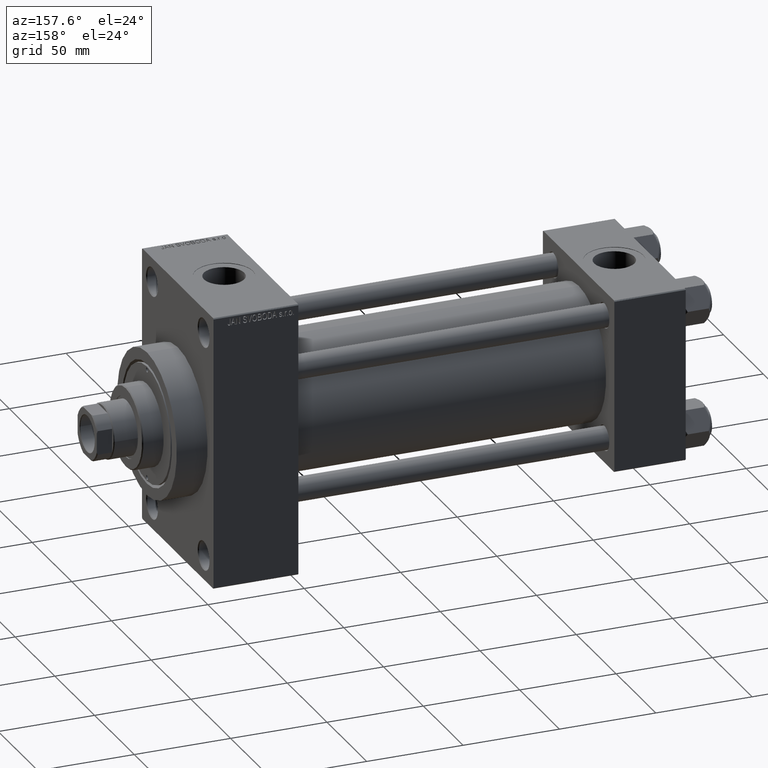
[diagram: clean part render]
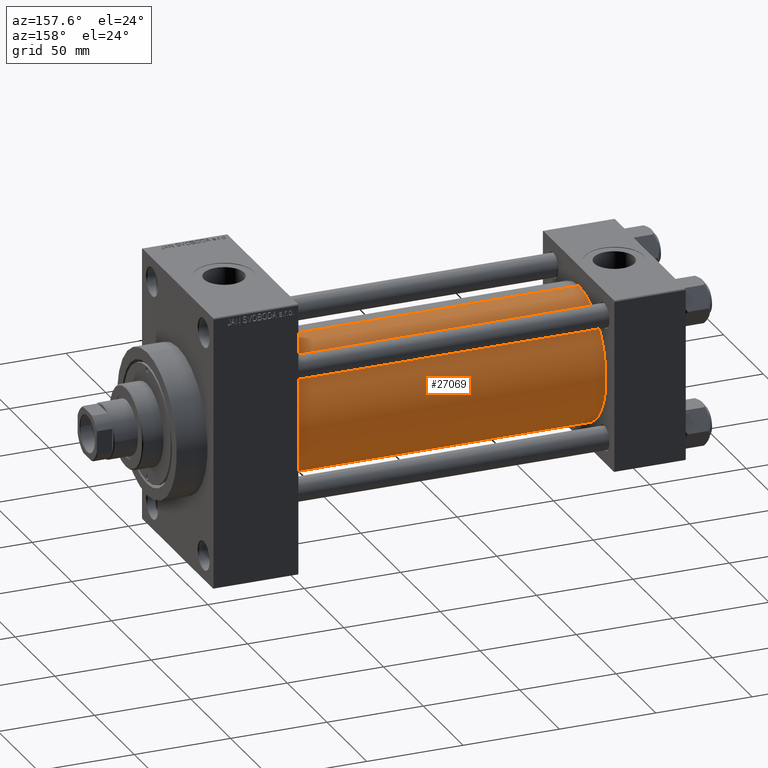
[diagram: same view with one face highlighted and labeled with its STEP entity id]
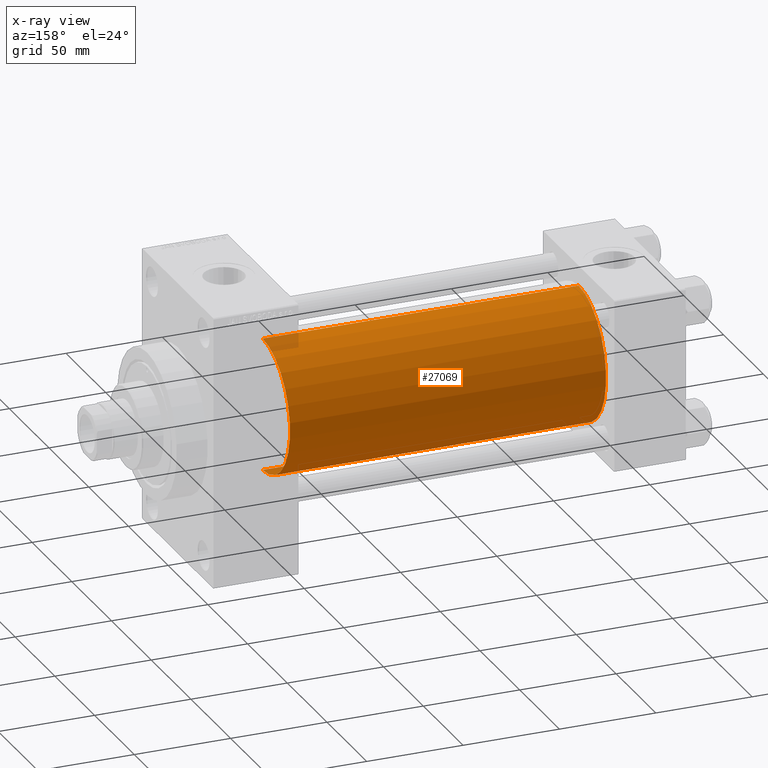
[diagram: x-ray of the same camera — body ghosted, the highlighted face saturated]
A machine part, auxiliary view. The second image highlights one B-rep face of the part: STEP entity #27069.
The next image is the same camera in x-ray: the body ghosted, the highlighted face saturated — about 1% of this face is hidden behind the body in this view.
In plain terms, the highlighted cylindrical surface (partial cylindrical patch) has radius 34.5 mm, axis along (-1, -0, -0).
Its self-contained STEP definition (entity closure, byte-faithful):
#4729 = AXIS2_PLACEMENT_3D ( 'NONE', #33149, #14442, #43702 ) ;
#5182 = DIRECTION ( 'NONE',  ( 0.000000000000000000, 0.000000000000000000, 1.000000000000000000 ) ) ;
#7532 = VERTEX_POINT ( 'NONE', #15357 ) ;
#8271 = VERTEX_POINT ( 'NONE', #22865 ) ;
#8826 = EDGE_CURVE ( 'NONE', #30546, #32964, #46732, .T. ) ;
#9193 = DIRECTION ( 'NONE',  ( 0.000000000000000000, 0.000000000000000000, -1.000000000000000000 ) ) ;
#9497 = FACE_OUTER_BOUND ( 'NONE', #9733, .T. ) ;
#9652 = DIRECTION ( 'NONE',  ( 1.000000000000000000, 0.000000000000000000, 0.000000000000000000 ) ) ;
#9733 = EDGE_LOOP ( 'NONE', ( #12860, #32916, #45464, #46867 ) ) ;
#10535 = DIRECTION ( 'NONE',  ( -1.000000000000000000, -0.000000000000000000, -0.000000000000000000 ) ) ;
#12860 = ORIENTED_EDGE ( 'NONE', *, *, #16294, .F. ) ;
#13138 = CIRCLE ( 'NONE', #4729, 34.50000000000000000 ) ;
#14422 = VECTOR ( 'NONE', #10535, 1000.000000000000000 ) ;
#14442 = DIRECTION ( 'NONE',  ( 1.000000000000000000, -0.000000000000000000, 0.000000000000000000 ) ) ;
#15357 = CARTESIAN_POINT ( 'NONE',  ( 201.0000000000000000, 1.622946243093158675E-15, -34.50000000000000000 ) ) ;
#16294 = EDGE_CURVE ( 'NONE', #7532, #30546, #39060, .T. ) ;
#16587 = CARTESIAN_POINT ( 'NONE',  ( 37.00000000000000711, -2.602085213965210642E-15, 34.50000000000000000 ) ) ;
#17628 = AXIS2_PLACEMENT_3D ( 'NONE', #38034, #24101, #5182 ) ;
#17817 = EDGE_CURVE ( 'NONE', #7532, #8271, #35918, .T. ) ;
#18387 = AXIS2_PLACEMENT_3D ( 'NONE', #35545, #9652, #9193 ) ;
#22865 = CARTESIAN_POINT ( 'NONE',  ( 37.00000000000000711, 1.622946243093158675E-15, -34.50000000000000000 ) ) ;
#24101 = DIRECTION ( 'NONE',  ( -1.000000000000000000, -0.000000000000000000, -0.000000000000000000 ) ) ;
#26564 = CARTESIAN_POINT ( 'NONE',  ( 201.0000000000000000, -2.602085213965210642E-15, 34.50000000000000000 ) ) ;
#27069 = ADVANCED_FACE ( 'NONE', ( #9497 ), #45925, .T. ) ;
#29448 = CARTESIAN_POINT ( 'NONE',  ( 201.0000000000000000, -2.602085213965210642E-15, 34.50000000000000000 ) ) ;
#29596 = CARTESIAN_POINT ( 'NONE',  ( 201.0000000000000000, 1.622946243093158675E-15, -34.50000000000000000 ) ) ;
#30546 = VERTEX_POINT ( 'NONE', #26564 ) ;
#32916 = ORIENTED_EDGE ( 'NONE', *, *, #17817, .T. ) ;
#32964 = VERTEX_POINT ( 'NONE', #16587 ) ;
#33149 = CARTESIAN_POINT ( 'NONE',  ( 37.00000000000000711, -2.602085213965210642E-15, 0.000000000000000000 ) ) ;
#34811 = EDGE_CURVE ( 'NONE', #8271, #32964, #13138, .T. ) ;
#35545 = CARTESIAN_POINT ( 'NONE',  ( 201.0000000000000000, -2.602085213965210642E-15, 0.000000000000000000 ) ) ;
#35918 = LINE ( 'NONE', #29596, #41390 ) ;
#38034 = CARTESIAN_POINT ( 'NONE',  ( 201.0000000000000000, -2.602085213965210642E-15, 0.000000000000000000 ) ) ;
#39060 = CIRCLE ( 'NONE', #18387, 34.50000000000000000 ) ;
#39502 = DIRECTION ( 'NONE',  ( -1.000000000000000000, -0.000000000000000000, -0.000000000000000000 ) ) ;
#41390 = VECTOR ( 'NONE', #39502, 1000.000000000000000 ) ;
#43702 = DIRECTION ( 'NONE',  ( 0.000000000000000000, 0.000000000000000000, 1.000000000000000000 ) ) ;
#45464 = ORIENTED_EDGE ( 'NONE', *, *, #34811, .T. ) ;
#45925 = CYLINDRICAL_SURFACE ( 'NONE', #17628, 34.50000000000000000 ) ;
#46732 = LINE ( 'NONE', #29448, #14422 ) ;
#46867 = ORIENTED_EDGE ( 'NONE', *, *, #8826, .F. ) ;